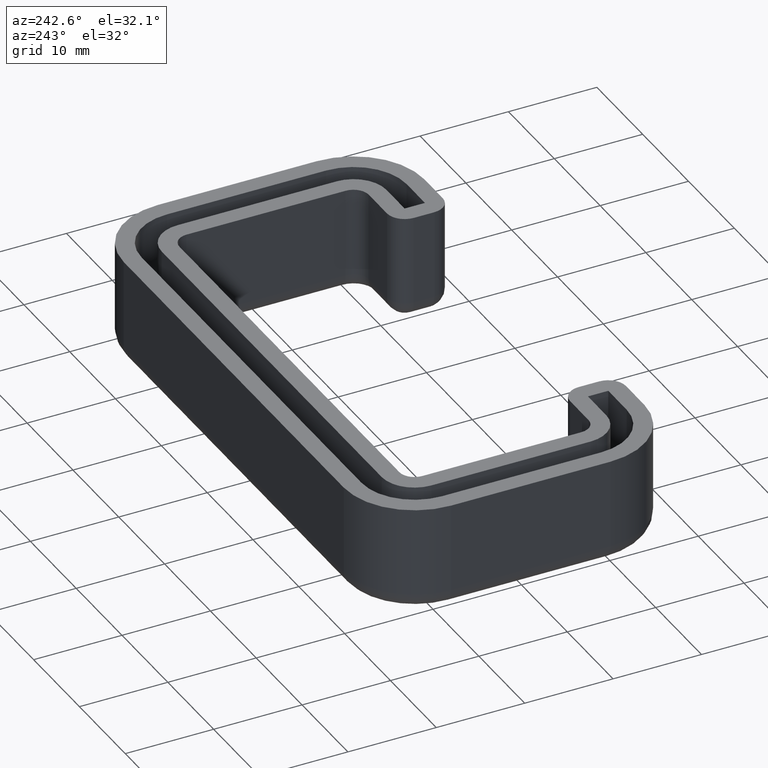
[diagram: clean part render]
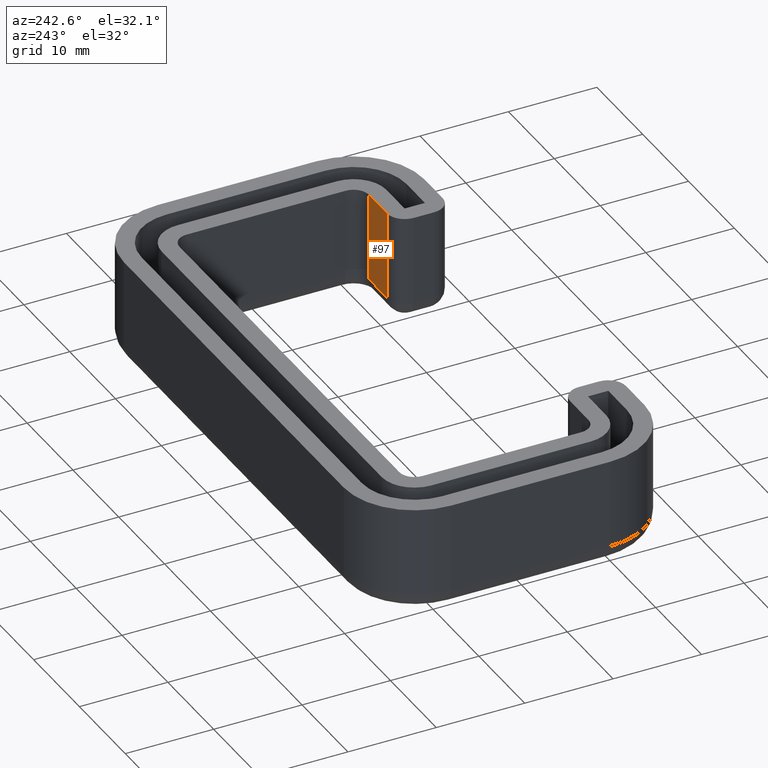
[diagram: same view with one face highlighted and labeled with its STEP entity id]
A machine part, auxiliary view. The second image highlights one B-rep face of the part: STEP entity #97.
In plain terms, the highlighted planar face has unit normal (0, 1, 0).
Its self-contained STEP definition (entity closure, byte-faithful):
#97 = ADVANCED_FACE( '', ( #192 ), #193, .T. );
#192 = FACE_OUTER_BOUND( '', #335, .T. );
#193 = PLANE( '', #336 );
#335 = EDGE_LOOP( '', ( #658, #659, #660, #661 ) );
#336 = AXIS2_PLACEMENT_3D( '', #662, #663, #664 );
#658 = ORIENTED_EDGE( '', *, *, #1117, .T. );
#659 = ORIENTED_EDGE( '', *, *, #1118, .T. );
#660 = ORIENTED_EDGE( '', *, *, #1119, .T. );
#661 = ORIENTED_EDGE( '', *, *, #1010, .T. );
#662 = CARTESIAN_POINT( '', ( 18.0000000000000, -10.6999999999992, -3.46944695195361E-015 ) );
#663 = DIRECTION( '', ( 0.000000000000000, 1.00000000000000, 0.000000000000000 ) );
#664 = DIRECTION( '', ( -1.00000000000000, 0.000000000000000, 0.000000000000000 ) );
#1010 = EDGE_CURVE( '', #1199, #1197, #1200, .T. );
#1117 = EDGE_CURVE( '', #1197, #1389, #1391, .T. );
#1118 = EDGE_CURVE( '', #1389, #1392, #1393, .F. );
#1119 = EDGE_CURVE( '', #1392, #1199, #1394, .F. );
#1197 = VERTEX_POINT( '', #1487 );
#1199 = VERTEX_POINT( '', #1489 );
#1200 = LINE( '', #1490, #1491 );
#1389 = VERTEX_POINT( '', #1740 );
#1391 = LINE( '', #1742, #1743 );
#1392 = VERTEX_POINT( '', #1744 );
#1393 = LINE( '', #1745, #1746 );
#1394 = LINE( '', #1747, #1748 );
#1487 = CARTESIAN_POINT( '', ( 23.9999999999983, -10.6999999999992, -3.46944695195361E-015 ) );
#1489 = CARTESIAN_POINT( '', ( 20.0000000000000, -10.6999999999992, -3.46944695195361E-015 ) );
#1490 = CARTESIAN_POINT( '', ( 18.0000000000000, -10.6999999999992, -3.46944695195361E-015 ) );
#1491 = VECTOR( '', #1870, 1000.00000000000 );
#1740 = CARTESIAN_POINT( '', ( 23.9999999999983, -10.6999999999992, -10.0000000000000 ) );
#1742 = CARTESIAN_POINT( '', ( 23.9999999999983, -10.6999999999992, -3.46944695195361E-015 ) );
#1743 = VECTOR( '', #2069, 1000.00000000000 );
#1744 = CARTESIAN_POINT( '', ( 20.0000000000000, -10.6999999999992, -10.0000000000000 ) );
#1745 = CARTESIAN_POINT( '', ( 18.0000000000000, -10.6999999999992, -10.0000000000000 ) );
#1746 = VECTOR( '', #2070, 1000.00000000000 );
#1747 = CARTESIAN_POINT( '', ( 20.0000000000000, -10.6999999999992, -3.46944695195361E-015 ) );
#1748 = VECTOR( '', #2071, 1000.00000000000 );
#1870 = DIRECTION( '', ( 1.00000000000000, 0.000000000000000, 0.000000000000000 ) );
#2069 = DIRECTION( '', ( 0.000000000000000, 0.000000000000000, -1.00000000000000 ) );
#2070 = DIRECTION( '', ( 1.00000000000000, 0.000000000000000, 0.000000000000000 ) );
#2071 = DIRECTION( '', ( 0.000000000000000, 0.000000000000000, -1.00000000000000 ) );